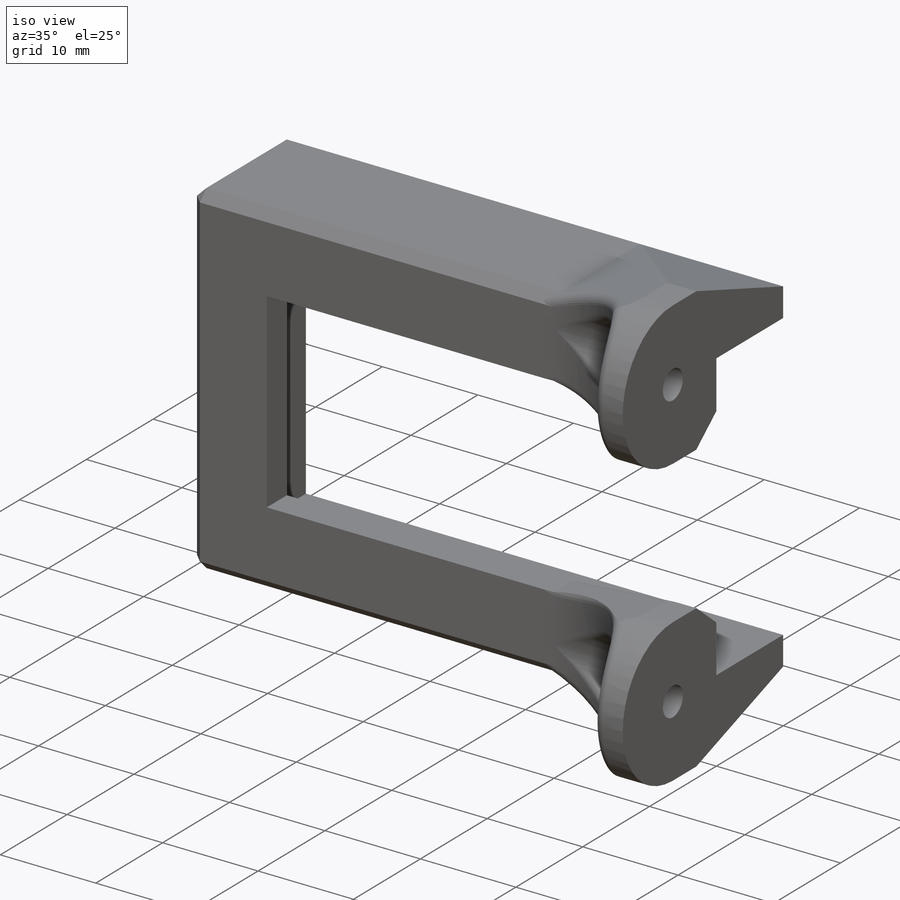
[diagram: iso view]
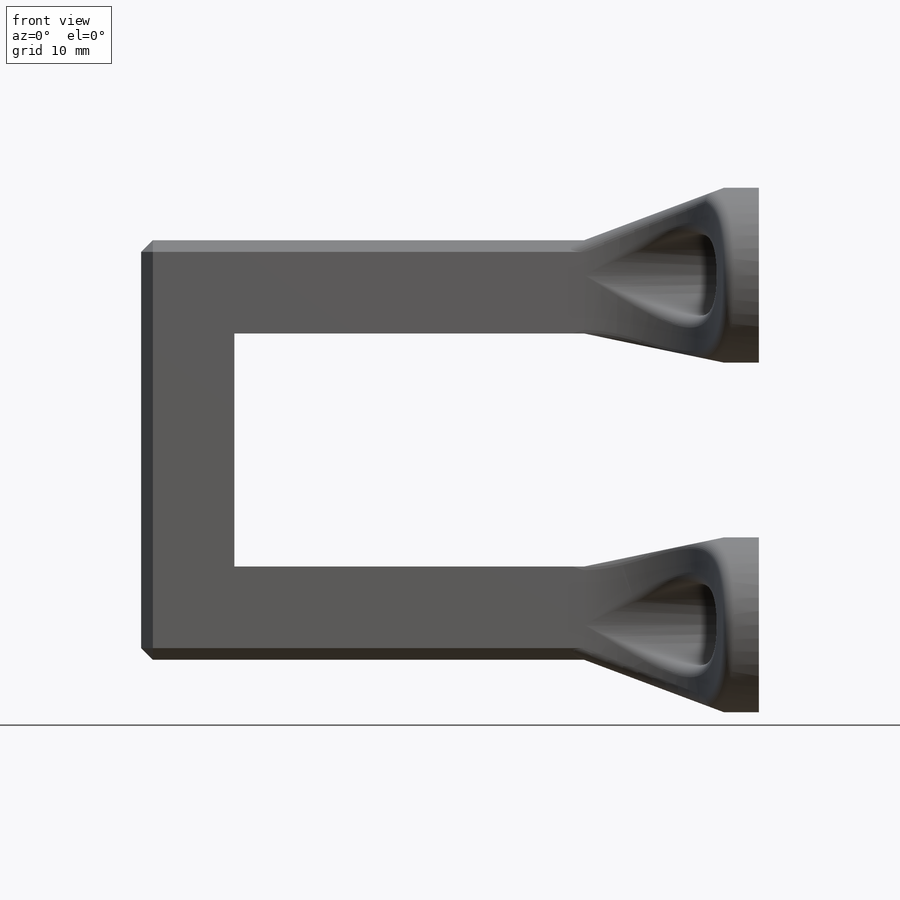
[diagram: front view]
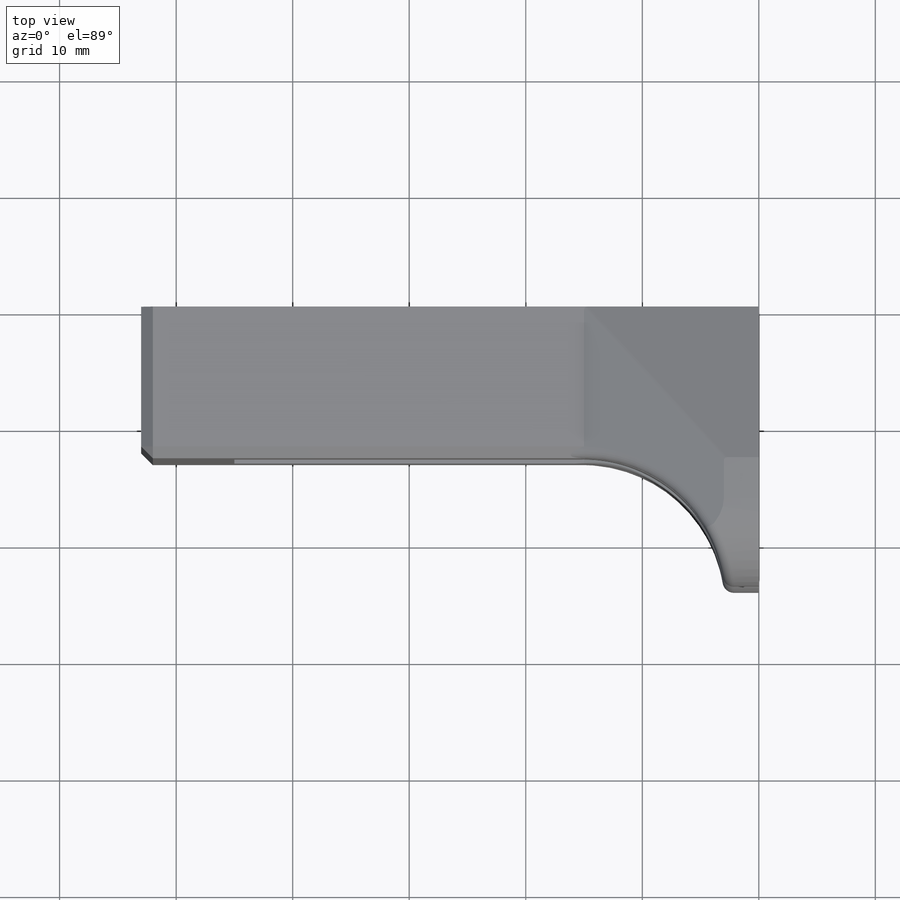
[diagram: top view]
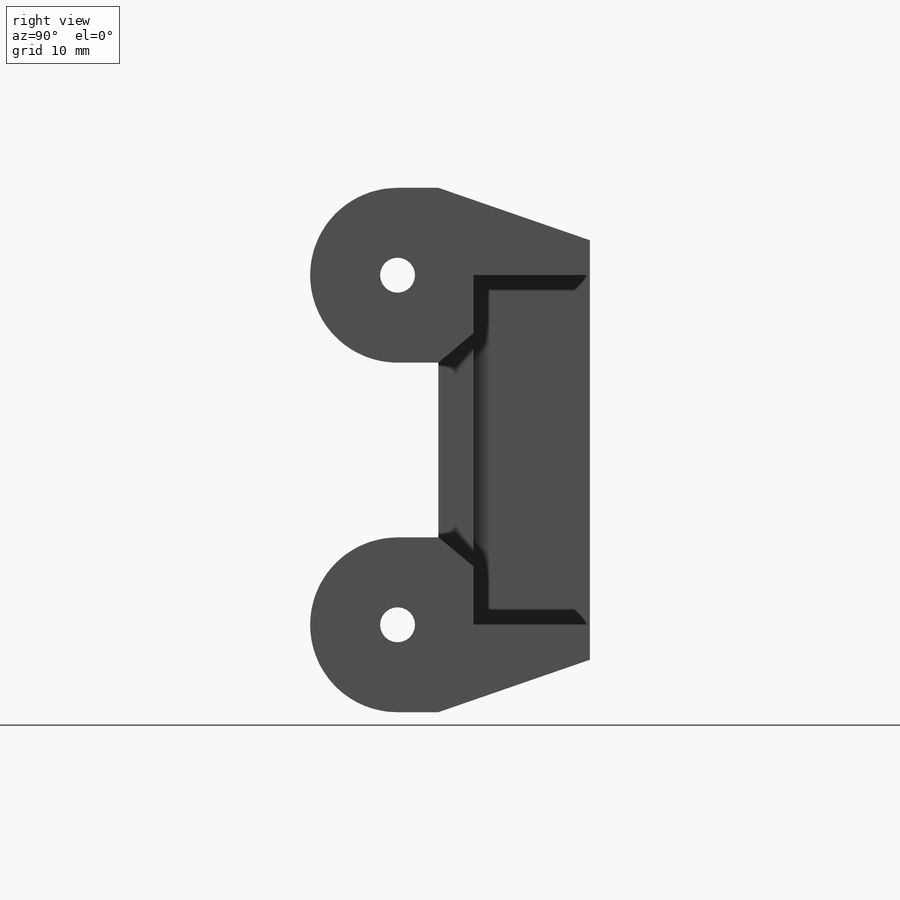
[diagram: right view]
SOLIDWORKS PART (.sldprt)
format: sldprt  version: not decoded by parser v0  size: 491,008 bytes
history: native  units: mm
features: sketch x8, cut_extrude x5, extrude x3, material x1, plane x1, fillet x1, chamfer x1 (+12 scaffold rows collapsed)
feature tree (32):
  scaffold x12  (default folders/planes/origin — collapsed)
  material  "Material <not specified>"
  sketch  "Sketch1"  dims[c1.D1=~60.583165mm c1.D2=~93.393373mm c2.D1=30.0mm c2.D2=50.0mm c2.D4=36.0mm c2.D3=3.0mm]
  extrude  "Boss-Extrude1"  Depth=10mm
  sketch  "Sketch2"  dims[D3=5.0mm D1=0.0mm D2=8.0mm]
  extrude  "Boss-Extrude2"  Depth=3mm
  sketch  "Sketch3"  dims[c1.D1=7.0mm c1.D2=7.0mm c1.D9=15.0mm c1.D6=~13.724164mm c1.D8=15.0mm c1.D3=30.0mm c1.D4=0.0mm c1.D5=3.5mm c2.D6=15.0mm c2.D7=15.0mm c2.D8=7.5mm c2.D9=~0.413983mm c3.D6=7.5mm c3.D8=~5.458503mm c4.D6=3.0mm]
  extrude  "Boss-Extrude3"  Depth=15mm
  sketch  "Sketch5"  dims[c1.D2=~12.045455mm c1.D1=3.0mm c2.D2=~2.063248mm c2.D1=12.0mm]
  cut_extrude  "Cut-Extrude1"  [1 undecoded]
  sketch  "Sketch6"  dims[D1=3.0mm D2=3.0mm]
  cut_extrude  "Cut-Extrude2"  [1 undecoded]
  sketch  "Sketch7"  dims[D1=3.0mm D2=3.0mm]
  cut_extrude  "Cut-Extrude3"  [1 undecoded]
  plane  "Plane1"  Offset=3mm
  sketch  "Sketch8"  dims[D1=7.0mm D2=7.0mm]
  cut_extrude  "Cut-Extrude4"  [1 undecoded]
  fillet  "Fillet1"  Radius=1mm
  sketch  "Sketch9"  dims[D1=3.0mm D2=3.0mm]
  cut_extrude  "Cut-Extrude5"  [1 undecoded]
  chamfer  "Chamfer1"  Distance=1mm Angle=45deg
decode coverage: 13 of 18 modeling features carry decoded parameters
note: ~ marks probable driven/reference dimensions
note: 5 parameter values undecoded
summary: no parameter record found for 5 features
note: suppression state not decoded; provenance and decode notes live in map.json
